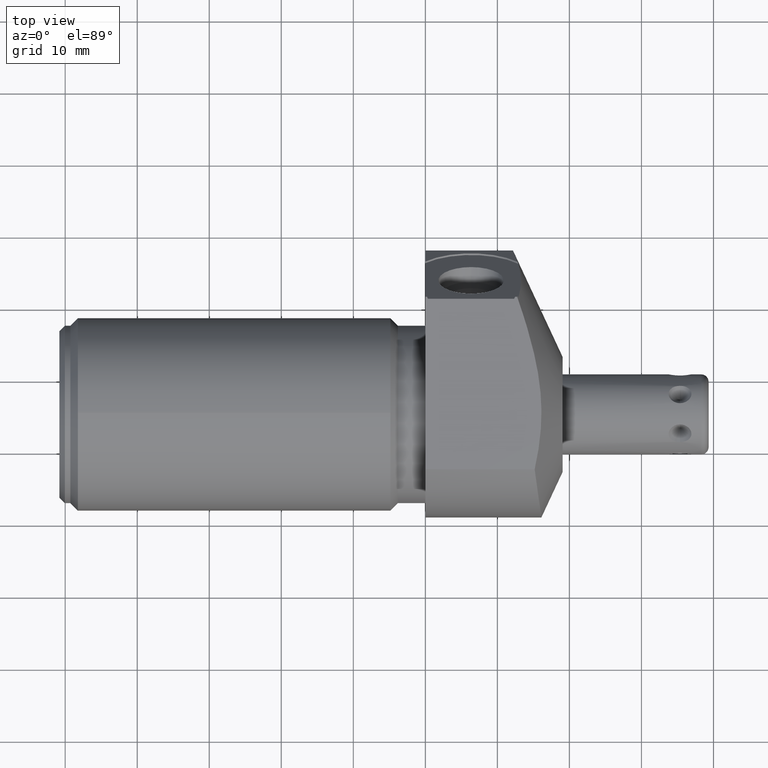
[diagram: clean part render]
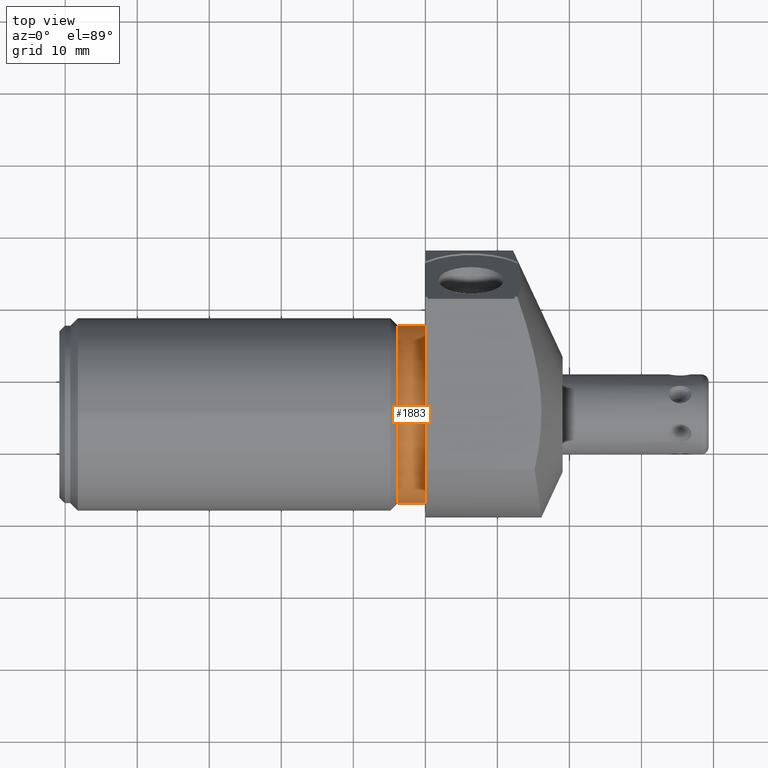
[diagram: same view with one face highlighted and labeled with its STEP entity id]
A machine part, top view. The second image highlights one B-rep face of the part: STEP entity #1883.
In plain terms, the highlighted cylindrical surface (partial cylindrical patch) has radius 12.319 mm, axis along (-1, 0, 0).
Its self-contained STEP definition (entity closure, byte-faithful):
#267=CARTESIAN_POINT('',(0.E0,-1.87E-1,0.E0));
#268=DIRECTION('',(1.E0,0.E0,0.E0));
#269=DIRECTION('',(0.E0,1.E0,0.E0));
#270=AXIS2_PLACEMENT_3D('',#267,#268,#269);
#375=DIRECTION('',(1.E0,0.E0,0.E0));
#376=VECTOR('',#375,1.5E-1);
#377=CARTESIAN_POINT('',(-1.5E-1,2.98E-1,0.E0));
#378=LINE('',#377,#376);
#382=DIRECTION('',(1.E0,0.E0,0.E0));
#383=VECTOR('',#382,1.5E-1);
#384=CARTESIAN_POINT('',(-1.5E-1,-6.72E-1,0.E0));
#385=LINE('',#384,#383);
#389=CARTESIAN_POINT('',(-1.5E-1,-1.87E-1,0.E0));
#390=DIRECTION('',(1.E0,0.E0,0.E0));
#391=DIRECTION('',(0.E0,1.E0,0.E0));
#392=AXIS2_PLACEMENT_3D('',#389,#390,#391);
#1514=CARTESIAN_POINT('',(-1.5E-1,2.98E-1,0.E0));
#1515=CARTESIAN_POINT('',(0.E0,2.98E-1,0.E0));
#1516=VERTEX_POINT('',#1514);
#1517=VERTEX_POINT('',#1515);
#1518=CARTESIAN_POINT('',(-1.5E-1,-6.72E-1,0.E0));
#1519=CARTESIAN_POINT('',(0.E0,-6.72E-1,0.E0));
#1520=VERTEX_POINT('',#1518);
#1521=VERTEX_POINT('',#1519);
#1871=CARTESIAN_POINT('',(9.55E-3,-1.87E-1,0.E0));
#1872=DIRECTION('',(-1.E0,0.E0,0.E0));
#1873=DIRECTION('',(0.E0,1.E0,0.E0));
#1874=AXIS2_PLACEMENT_3D('',#1871,#1872,#1873);
#1875=CYLINDRICAL_SURFACE('',#1874,4.85E-1);
#1876=ORIENTED_EDGE('',*,*,#1861,.T.);
#1877=ORIENTED_EDGE('',*,*,#1851,.T.);
#1878=ORIENTED_EDGE('',*,*,#1865,.F.);
#1880=ORIENTED_EDGE('',*,*,#1879,.F.);
#1881=EDGE_LOOP('',(#1876,#1877,#1878,#1880));
#1882=FACE_OUTER_BOUND('',#1881,.F.);
#1883=ADVANCED_FACE('',(#1882),#1875,.T.);
#271=CIRCLE('',#270,4.85E-1);
#393=CIRCLE('',#392,4.85E-1);
#1851=EDGE_CURVE('',#1517,#1521,#271,.T.);
#1861=EDGE_CURVE('',#1516,#1517,#378,.T.);
#1865=EDGE_CURVE('',#1520,#1521,#385,.T.);
#1879=EDGE_CURVE('',#1516,#1520,#393,.T.);